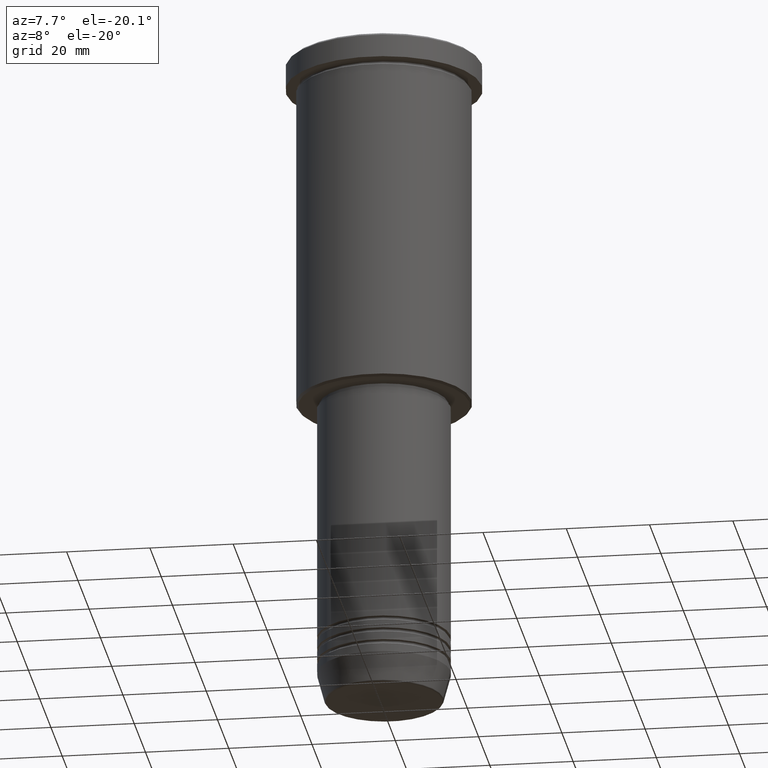
[diagram: clean part render]
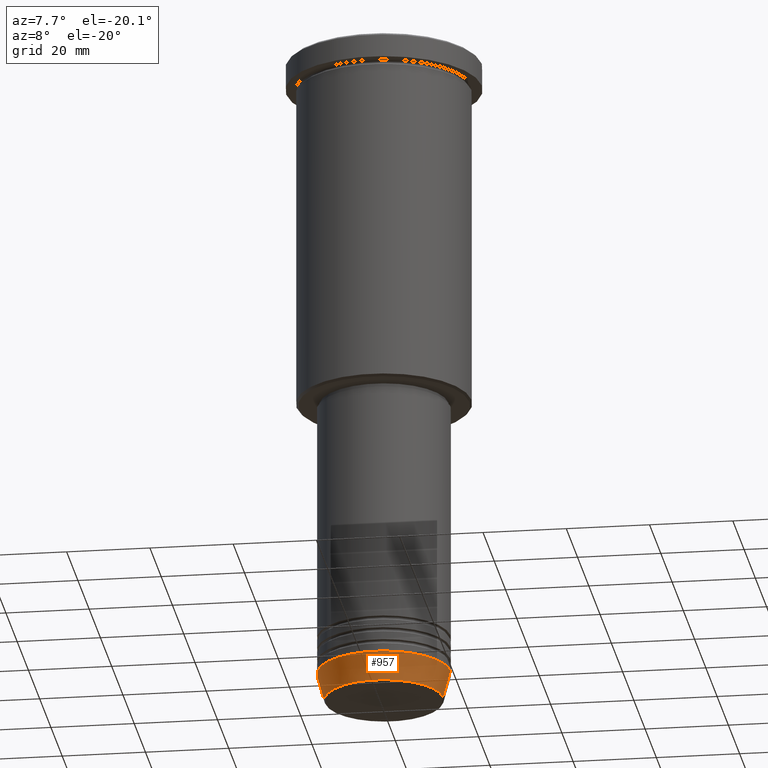
[diagram: same view with one face highlighted and labeled with its STEP entity id]
A machine part, auxiliary view. The second image highlights one B-rep face of the part: STEP entity #957.
In plain terms, the highlighted conical surface has half-angle 15 deg.
Its self-contained STEP definition (entity closure, byte-faithful):
#1 = ORIENTED_EDGE ( 'NONE', *, *, #987, .F. ) ;
#53 = VERTEX_POINT ( 'NONE', #790 ) ;
#177 = CARTESIAN_POINT ( 'NONE',  ( -16.00000000000000000, 1.959434878635765131E-15, -154.0000000000000000 ) ) ;
#187 = DIRECTION ( 'NONE',  ( 1.000000000000000000, 0.000000000000000000, 0.000000000000000000 ) ) ;
#203 = EDGE_CURVE ( 'NONE', #53, #982, #799, .T. ) ;
#241 = ORIENTED_EDGE ( 'NONE', *, *, #528, .T. ) ;
#243 = LINE ( 'NONE', #867, #681 ) ;
#298 = EDGE_LOOP ( 'NONE', ( #511, #241, #315, #1 ) ) ;
#315 = ORIENTED_EDGE ( 'NONE', *, *, #1174, .T. ) ;
#342 = CONICAL_SURFACE ( 'NONE', #1080, 16.00000000000000000, 0.2617993877991500740 ) ;
#350 = CARTESIAN_POINT ( 'NONE',  ( -16.00000000000000000, 1.959434878635765131E-15, -154.0000000000000000 ) ) ;
#368 = CARTESIAN_POINT ( 'NONE',  ( 0.000000000000000000, 0.000000000000000000, -160.6294095225512422 ) ) ;
#417 = DIRECTION ( 'NONE',  ( 0.2588190451025213501, 0.000000000000000000, 0.9659258262890680902 ) ) ;
#427 = VECTOR ( 'NONE', #639, 1000.000000000000000 ) ;
#433 = VERTEX_POINT ( 'NONE', #1180 ) ;
#451 = CARTESIAN_POINT ( 'NONE',  ( 0.000000000000000000, 0.000000000000000000, -154.0000000000000000 ) ) ;
#482 = AXIS2_PLACEMENT_3D ( 'NONE', #451, #723, #915 ) ;
#511 = ORIENTED_EDGE ( 'NONE', *, *, #203, .F. ) ;
#528 = EDGE_CURVE ( 'NONE', #53, #433, #1155, .T. ) ;
#542 = VERTEX_POINT ( 'NONE', #1162 ) ;
#626 = CIRCLE ( 'NONE', #482, 16.00000000000000000 ) ;
#639 = DIRECTION ( 'NONE',  ( -0.2588190451025213501, 3.169619151431772337E-17, 0.9659258262890680902 ) ) ;
#663 = AXIS2_PLACEMENT_3D ( 'NONE', #368, #996, #187 ) ;
#681 = VECTOR ( 'NONE', #417, 1000.000000000000000 ) ;
#696 = DIRECTION ( 'NONE',  ( -0.000000000000000000, -0.000000000000000000, 1.000000000000000000 ) ) ;
#716 = CARTESIAN_POINT ( 'NONE',  ( 0.000000000000000000, 0.000000000000000000, -154.0000000000000000 ) ) ;
#723 = DIRECTION ( 'NONE',  ( -0.000000000000000000, -0.000000000000000000, 1.000000000000000000 ) ) ;
#790 = CARTESIAN_POINT ( 'NONE',  ( -14.22365507213719660, 1.850665122131324126E-15, -160.6294095225512422 ) ) ;
#799 = LINE ( 'NONE', #350, #427 ) ;
#867 = CARTESIAN_POINT ( 'NONE',  ( 16.00000000000000000, 0.000000000000000000, -154.0000000000000000 ) ) ;
#915 = DIRECTION ( 'NONE',  ( 1.000000000000000000, 0.000000000000000000, 0.000000000000000000 ) ) ;
#957 = ADVANCED_FACE ( 'NONE', ( #1089 ), #342, .T. ) ;
#982 = VERTEX_POINT ( 'NONE', #177 ) ;
#987 = EDGE_CURVE ( 'NONE', #982, #542, #626, .T. ) ;
#996 = DIRECTION ( 'NONE',  ( -0.000000000000000000, -0.000000000000000000, 1.000000000000000000 ) ) ;
#1062 = DIRECTION ( 'NONE',  ( 1.000000000000000000, 0.000000000000000000, 0.000000000000000000 ) ) ;
#1080 = AXIS2_PLACEMENT_3D ( 'NONE', #716, #696, #1062 ) ;
#1089 = FACE_OUTER_BOUND ( 'NONE', #298, .T. ) ;
#1155 = CIRCLE ( 'NONE', #663, 14.22365507213719660 ) ;
#1162 = CARTESIAN_POINT ( 'NONE',  ( 16.00000000000000000, 0.000000000000000000, -154.0000000000000000 ) ) ;
#1174 = EDGE_CURVE ( 'NONE', #433, #542, #243, .T. ) ;
#1180 = CARTESIAN_POINT ( 'NONE',  ( 14.22365507213719660, 0.000000000000000000, -160.6294095225512422 ) ) ;